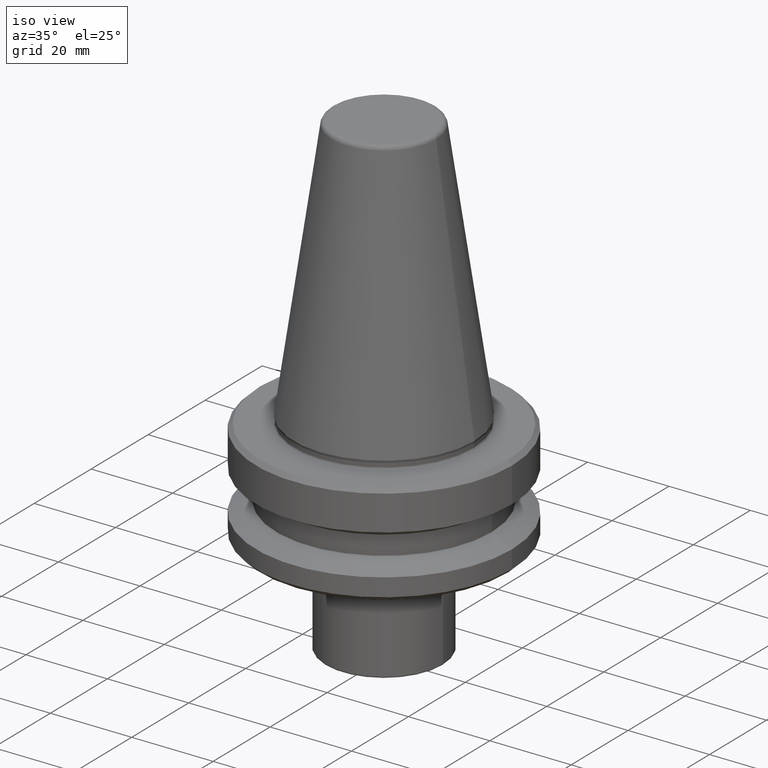
[diagram: clean part render]
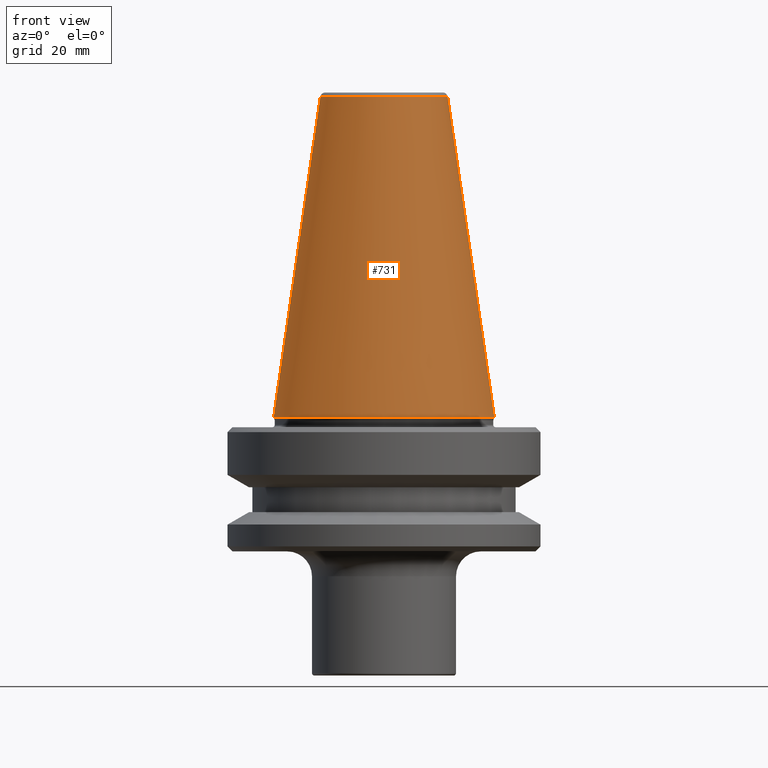
[diagram: tour spotlight — one face highlighted and labeled with its STEP entity id]
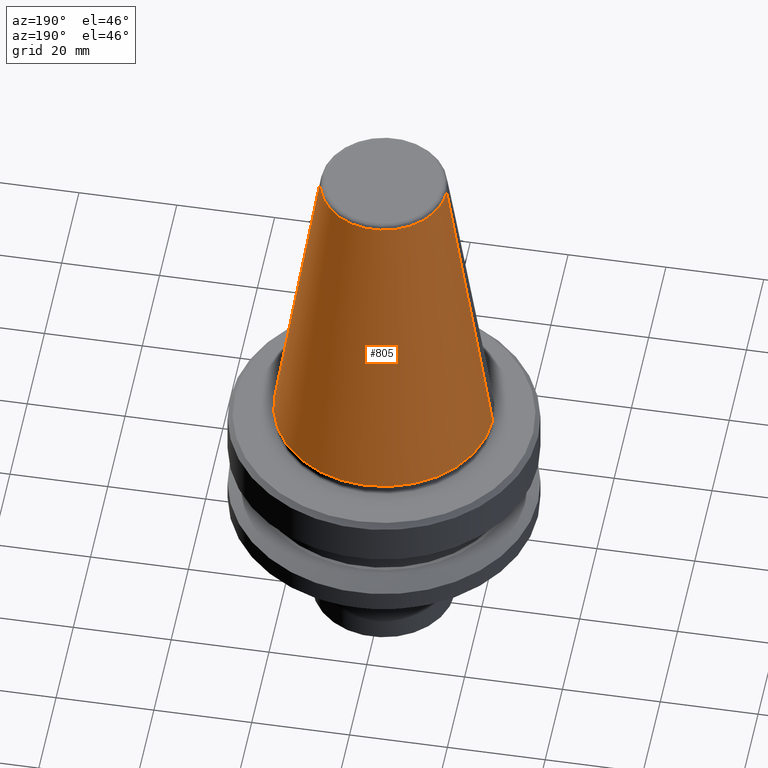
[diagram: tour spotlight — one face highlighted and labeled with its STEP entity id]
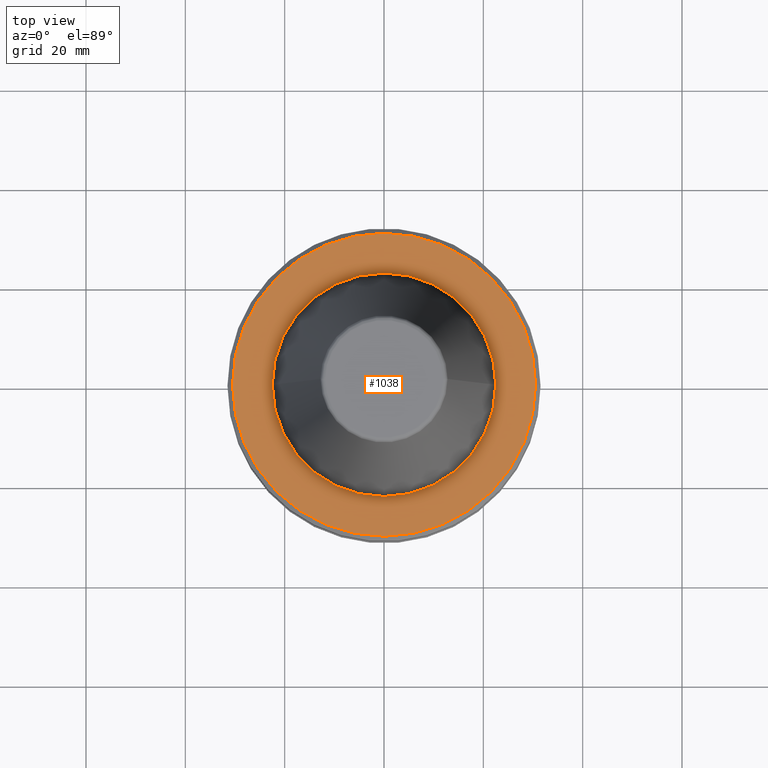
[diagram: tour spotlight — one face highlighted and labeled with its STEP entity id]
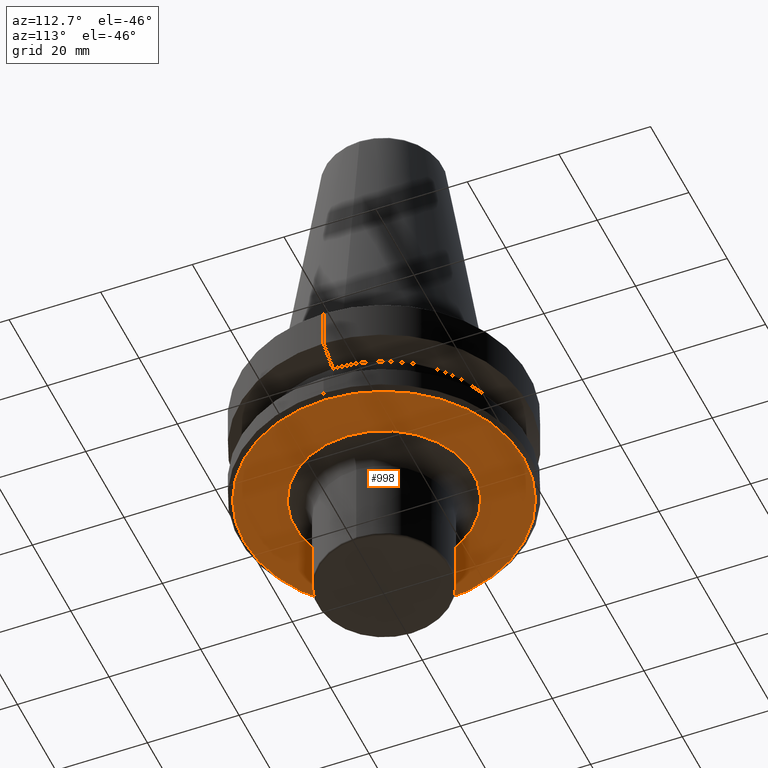
[diagram: tour spotlight — one face highlighted and labeled with its STEP entity id]
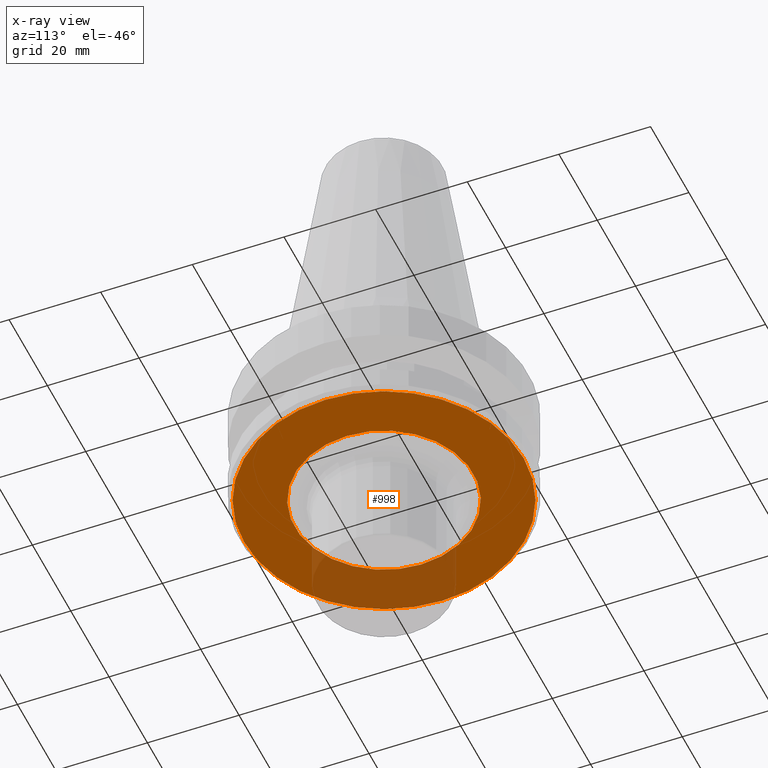
[diagram: x-ray of the same camera — body ghosted, this tour face saturated]
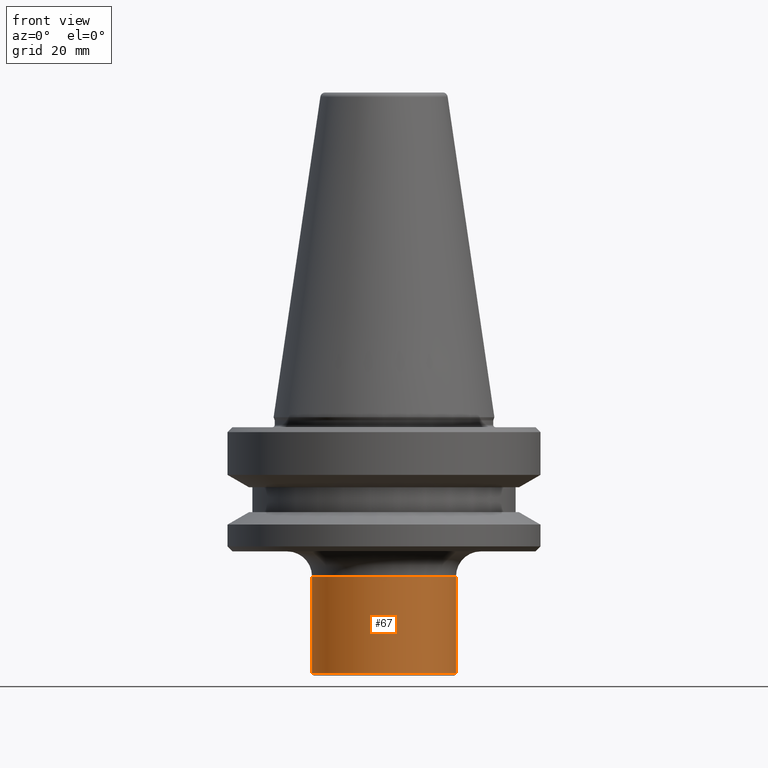
[diagram: tour spotlight — one face highlighted and labeled with its STEP entity id]
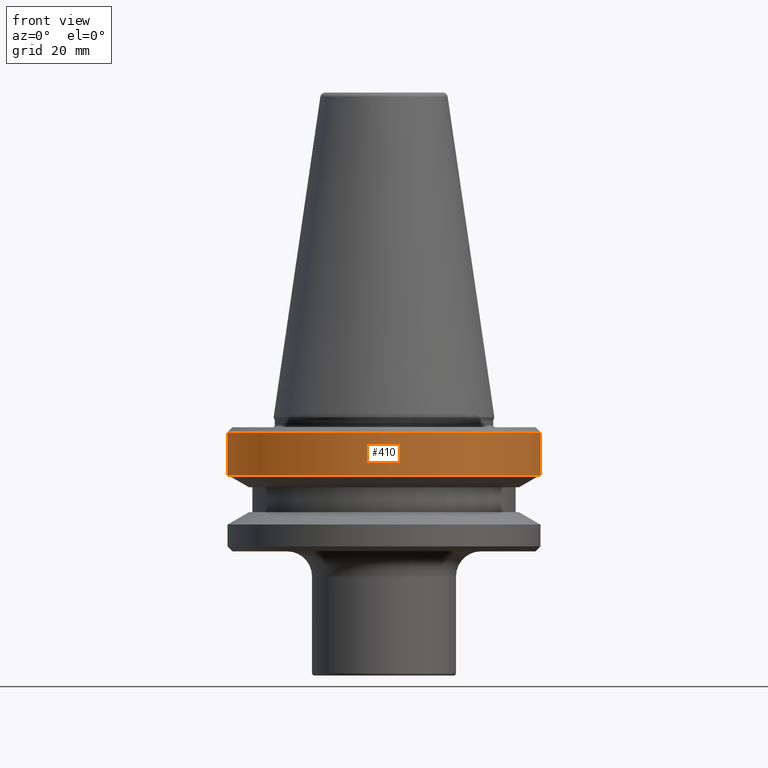
[diagram: tour spotlight — one face highlighted and labeled with its STEP entity id]
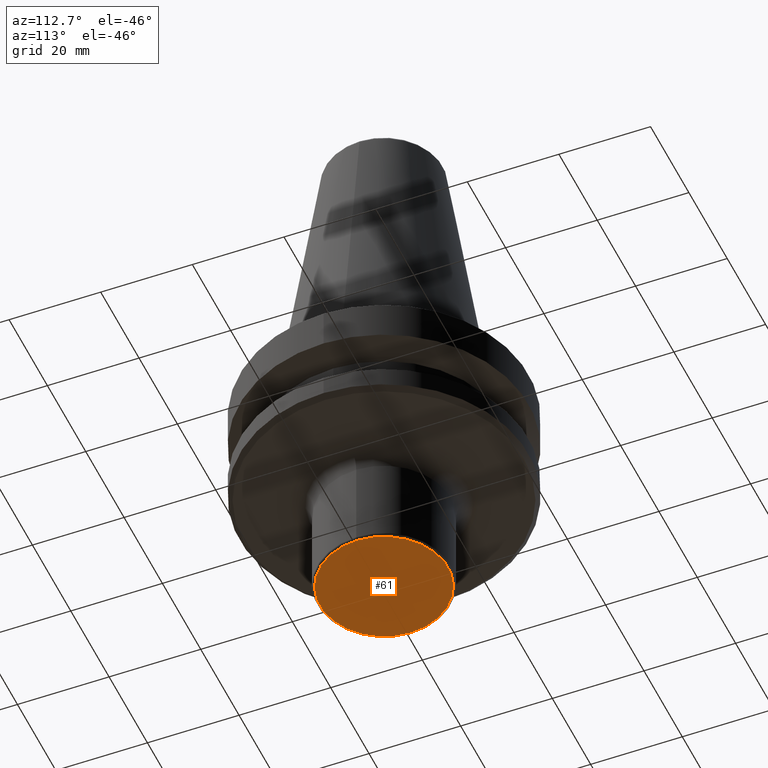
[diagram: tour spotlight — one face highlighted and labeled with its STEP entity id]
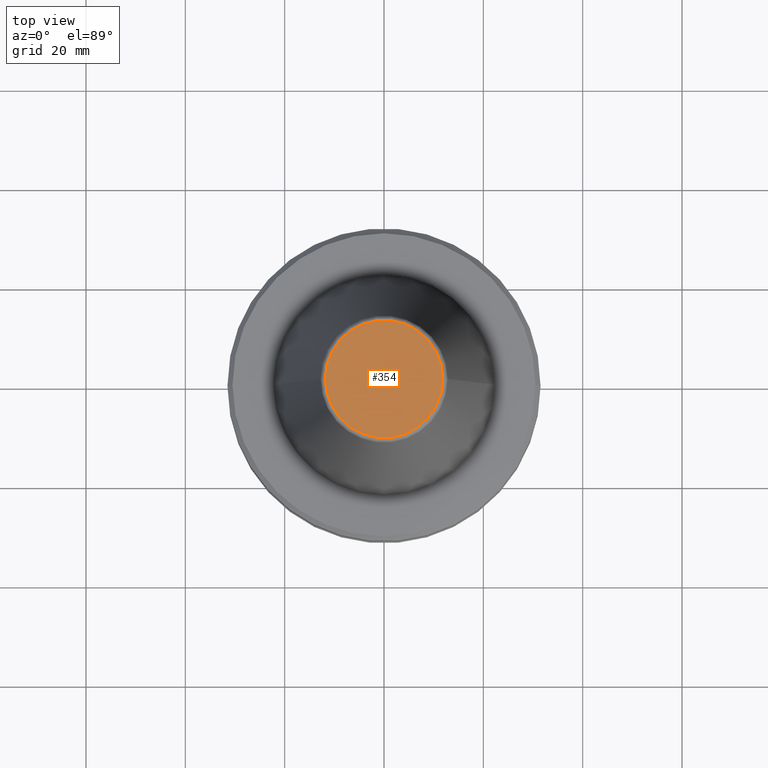
[diagram: tour spotlight — one face highlighted and labeled with its STEP entity id]
A machine part: a face-by-face anatomy tour. The part has 38 B-rep faces; the first image is the clean iso view, then the 8 largest visible faces are spotlighted one at a time (largest first), each with its STEP entity span.

Face 1 — front view, entity #731. In plain terms, the highlighted conical surface has half-angle 8.297 deg.
Definition (entity closure, byte-faithful):
#46 = ORIENTED_EDGE ( 'NONE', *, *, #614, .T. ) ;
#98 = CARTESIAN_POINT ( 'NONE',  ( 0.0000000000000000000, 0.0000000000000000000, -0.8556918111122247000 ) ) ;
#142 = DIRECTION ( 'NONE',  ( -1.000000000000000000, 0.0000000000000000000, 0.0000000000000000000 ) ) ;
#193 = ORIENTED_EDGE ( 'NONE', *, *, #1030, .F. ) ;
#214 = LINE ( 'NONE', #993, #243 ) ;
#240 = EDGE_CURVE ( 'NONE', #252, #974, #385, .T. ) ;
#243 = VECTOR ( 'NONE', #585, 1000.000000000000000 ) ;
#252 = VERTEX_POINT ( 'NONE', #333 ) ;
#260 = AXIS2_PLACEMENT_3D ( 'NONE', #542, #463, #142 ) ;
#333 = CARTESIAN_POINT ( 'NONE',  ( -12.81220206925736900, 0.0000000000000000000, -0.8556918111122247000 ) ) ;
#336 = LINE ( 'NONE', #765, #709 ) ;
#340 = CIRCLE ( 'NONE', #874, 22.22499999999993700 ) ;
#353 = CARTESIAN_POINT ( 'NONE',  ( -22.22499999999993700, 2.721777511104985000E-015, -65.40000000000057400 ) ) ;
#366 = EDGE_CURVE ( 'NONE', #252, #1012, #336, .T. ) ;
#372 = DIRECTION ( 'NONE',  ( -0.1443081888881795900, 0.0000000000000000000, -0.9895327920891826600 ) ) ;
#385 = CIRCLE ( 'NONE', #602, 12.81220206925736900 ) ;
#395 = EDGE_LOOP ( 'NONE', ( #193, #489, #886, #46 ) ) ;
#409 = CARTESIAN_POINT ( 'NONE',  ( 12.81220206925736900, 2.145409868259749100E-015, -0.8556918111122247000 ) ) ;
#426 = DIRECTION ( 'NONE',  ( 1.000000000000000000, 0.0000000000000000000, 0.0000000000000000000 ) ) ;
#463 = DIRECTION ( 'NONE',  ( 0.0000000000000000000, 0.0000000000000000000, -1.000000000000000000 ) ) ;
#489 = ORIENTED_EDGE ( 'NONE', *, *, #240, .F. ) ;
#523 = CARTESIAN_POINT ( 'NONE',  ( 22.22499999999993700, 0.0000000000000000000, -65.40000000000057400 ) ) ;
#542 = CARTESIAN_POINT ( 'NONE',  ( 0.0000000000000000000, 0.0000000000000000000, -0.8556918111122247000 ) ) ;
#561 = CARTESIAN_POINT ( 'NONE',  ( 0.0000000000000000000, 0.0000000000000000000, -65.40000000000057400 ) ) ;
#585 = DIRECTION ( 'NONE',  ( 0.1443081888881795900, 1.767265616126607700E-017, -0.9895327920891826600 ) ) ;
#602 = AXIS2_PLACEMENT_3D ( 'NONE', #98, #667, #426 ) ;
#614 = EDGE_CURVE ( 'NONE', #1012, #706, #340, .T. ) ;
#622 = DIRECTION ( 'NONE',  ( 1.000000000000000000, 0.0000000000000000000, 0.0000000000000000000 ) ) ;
#667 = DIRECTION ( 'NONE',  ( -0.0000000000000000000, -0.0000000000000000000, 1.000000000000000000 ) ) ;
#680 = CONICAL_SURFACE ( 'NONE', #260, 12.81220206925736900, 0.1448138077623198300 ) ;
#706 = VERTEX_POINT ( 'NONE', #523 ) ;
#709 = VECTOR ( 'NONE', #372, 1000.000000000000000 ) ;
#731 = ADVANCED_FACE ( 'NONE', ( #959 ), #680, .T. ) ;
#765 = CARTESIAN_POINT ( 'NONE',  ( -12.81220206925736900, 0.0000000000000000000, -0.8556918111122247000 ) ) ;
#874 = AXIS2_PLACEMENT_3D ( 'NONE', #561, #1024, #622 ) ;
#886 = ORIENTED_EDGE ( 'NONE', *, *, #366, .T. ) ;
#959 = FACE_OUTER_BOUND ( 'NONE', #395, .T. ) ;
#974 = VERTEX_POINT ( 'NONE', #409 ) ;
#993 = CARTESIAN_POINT ( 'NONE',  ( 12.81220206925736900, 1.569042225414513200E-015, -0.8556918111122247000 ) ) ;
#1012 = VERTEX_POINT ( 'NONE', #353 ) ;
#1024 = DIRECTION ( 'NONE',  ( -0.0000000000000000000, -0.0000000000000000000, 1.000000000000000000 ) ) ;
#1030 = EDGE_CURVE ( 'NONE', #974, #706, #214, .T. ) ;

Face 2 — auxiliary view, entity #805. In plain terms, the highlighted conical surface has half-angle 8.297 deg.
Definition (entity closure, byte-faithful):
#5 = DIRECTION ( 'NONE',  ( 0.0000000000000000000, 0.0000000000000000000, -1.000000000000000000 ) ) ;
#38 = DIRECTION ( 'NONE',  ( 1.000000000000000000, 0.0000000000000000000, 0.0000000000000000000 ) ) ;
#115 = AXIS2_PLACEMENT_3D ( 'NONE', #852, #970, #38 ) ;
#127 = ORIENTED_EDGE ( 'NONE', *, *, #474, .T. ) ;
#175 = CONICAL_SURFACE ( 'NONE', #639, 12.81220206925736900, 0.1448138077623198300 ) ;
#214 = LINE ( 'NONE', #993, #243 ) ;
#243 = VECTOR ( 'NONE', #585, 1000.000000000000000 ) ;
#244 = ORIENTED_EDGE ( 'NONE', *, *, #418, .F. ) ;
#252 = VERTEX_POINT ( 'NONE', #333 ) ;
#285 = ORIENTED_EDGE ( 'NONE', *, *, #366, .F. ) ;
#295 = EDGE_LOOP ( 'NONE', ( #244, #322, #127, #285 ) ) ;
#322 = ORIENTED_EDGE ( 'NONE', *, *, #1030, .T. ) ;
#333 = CARTESIAN_POINT ( 'NONE',  ( -12.81220206925736900, 0.0000000000000000000, -0.8556918111122247000 ) ) ;
#336 = LINE ( 'NONE', #765, #709 ) ;
#353 = CARTESIAN_POINT ( 'NONE',  ( -22.22499999999993700, 2.721777511104985000E-015, -65.40000000000057400 ) ) ;
#366 = EDGE_CURVE ( 'NONE', #252, #1012, #336, .T. ) ;
#372 = DIRECTION ( 'NONE',  ( -0.1443081888881795900, 0.0000000000000000000, -0.9895327920891826600 ) ) ;
#374 = DIRECTION ( 'NONE',  ( 1.000000000000000000, 0.0000000000000000000, 0.0000000000000000000 ) ) ;
#388 = AXIS2_PLACEMENT_3D ( 'NONE', #473, #835, #374 ) ;
#409 = CARTESIAN_POINT ( 'NONE',  ( 12.81220206925736900, 2.145409868259749100E-015, -0.8556918111122247000 ) ) ;
#413 = CIRCLE ( 'NONE', #388, 22.22499999999993700 ) ;
#418 = EDGE_CURVE ( 'NONE', #974, #252, #677, .T. ) ;
#473 = CARTESIAN_POINT ( 'NONE',  ( 0.0000000000000000000, 0.0000000000000000000, -65.40000000000057400 ) ) ;
#474 = EDGE_CURVE ( 'NONE', #706, #1012, #413, .T. ) ;
#508 = CARTESIAN_POINT ( 'NONE',  ( 0.0000000000000000000, 0.0000000000000000000, -0.8556918111122247000 ) ) ;
#523 = CARTESIAN_POINT ( 'NONE',  ( 22.22499999999993700, 0.0000000000000000000, -65.40000000000057400 ) ) ;
#585 = DIRECTION ( 'NONE',  ( 0.1443081888881795900, 1.767265616126607700E-017, -0.9895327920891826600 ) ) ;
#639 = AXIS2_PLACEMENT_3D ( 'NONE', #508, #5, #914 ) ;
#677 = CIRCLE ( 'NONE', #115, 12.81220206925736900 ) ;
#706 = VERTEX_POINT ( 'NONE', #523 ) ;
#709 = VECTOR ( 'NONE', #372, 1000.000000000000000 ) ;
#765 = CARTESIAN_POINT ( 'NONE',  ( -12.81220206925736900, 0.0000000000000000000, -0.8556918111122247000 ) ) ;
#805 = ADVANCED_FACE ( 'NONE', ( #1035 ), #175, .T. ) ;
#835 = DIRECTION ( 'NONE',  ( -0.0000000000000000000, -0.0000000000000000000, 1.000000000000000000 ) ) ;
#852 = CARTESIAN_POINT ( 'NONE',  ( 0.0000000000000000000, 0.0000000000000000000, -0.8556918111122247000 ) ) ;
#914 = DIRECTION ( 'NONE',  ( -1.000000000000000000, 0.0000000000000000000, 0.0000000000000000000 ) ) ;
#970 = DIRECTION ( 'NONE',  ( -0.0000000000000000000, -0.0000000000000000000, 1.000000000000000000 ) ) ;
#974 = VERTEX_POINT ( 'NONE', #409 ) ;
#993 = CARTESIAN_POINT ( 'NONE',  ( 12.81220206925736900, 1.569042225414513200E-015, -0.8556918111122247000 ) ) ;
#1012 = VERTEX_POINT ( 'NONE', #353 ) ;
#1030 = EDGE_CURVE ( 'NONE', #974, #706, #214, .T. ) ;
#1035 = FACE_OUTER_BOUND ( 'NONE', #295, .T. ) ;

Face 3 — top view, entity #1038. In plain terms, the highlighted planar face has unit normal (0, 0, -1).
Definition (entity closure, byte-faithful):
#45 = CARTESIAN_POINT ( 'NONE',  ( 0.0000000000000000000, 0.0000000000000000000, -67.40000000000034700 ) ) ;
#47 = ORIENTED_EDGE ( 'NONE', *, *, #789, .T. ) ;
#68 = EDGE_CURVE ( 'NONE', #167, #430, #498, .T. ) ;
#82 = DIRECTION ( 'NONE',  ( -0.0000000000000000000, -0.0000000000000000000, 1.000000000000000000 ) ) ;
#90 = AXIS2_PLACEMENT_3D ( 'NONE', #1016, #82, #540 ) ;
#106 = DIRECTION ( 'NONE',  ( 0.0000000000000000000, 0.0000000000000000000, -1.000000000000000000 ) ) ;
#113 = CARTESIAN_POINT ( 'NONE',  ( 30.49999999999997200, 3.796405077356798300E-015, -67.40000000000034700 ) ) ;
#156 = AXIS2_PLACEMENT_3D ( 'NONE', #563, #1048, #317 ) ;
#167 = VERTEX_POINT ( 'NONE', #966 ) ;
#191 = ORIENTED_EDGE ( 'NONE', *, *, #803, .T. ) ;
#245 = CARTESIAN_POINT ( 'NONE',  ( 0.0000000000000000000, 0.0000000000000000000, -67.40000000000034700 ) ) ;
#275 = DIRECTION ( 'NONE',  ( -1.000000000000000000, 0.0000000000000000000, -0.0000000000000000000 ) ) ;
#317 = DIRECTION ( 'NONE',  ( 1.000000000000000000, 0.0000000000000000000, 0.0000000000000000000 ) ) ;
#325 = EDGE_LOOP ( 'NONE', ( #191, #47 ) ) ;
#422 = AXIS2_PLACEMENT_3D ( 'NONE', #45, #691, #566 ) ;
#430 = VERTEX_POINT ( 'NONE', #435 ) ;
#435 = CARTESIAN_POINT ( 'NONE',  ( 22.49999999999996400, 0.0000000000000000000, -67.40000000000034700 ) ) ;
#440 = ORIENTED_EDGE ( 'NONE', *, *, #704, .F. ) ;
#498 = CIRCLE ( 'NONE', #156, 22.49999999999996400 ) ;
#506 = PLANE ( 'NONE',  #888 ) ;
#526 = AXIS2_PLACEMENT_3D ( 'NONE', #245, #818, #734 ) ;
#540 = DIRECTION ( 'NONE',  ( 1.000000000000000000, 0.0000000000000000000, 0.0000000000000000000 ) ) ;
#563 = CARTESIAN_POINT ( 'NONE',  ( 0.0000000000000000000, 0.0000000000000000000, -67.40000000000034700 ) ) ;
#566 = DIRECTION ( 'NONE',  ( 1.000000000000000000, 0.0000000000000000000, 0.0000000000000000000 ) ) ;
#569 = VERTEX_POINT ( 'NONE', #113 ) ;
#634 = CIRCLE ( 'NONE', #526, 30.49999999999997200 ) ;
#691 = DIRECTION ( 'NONE',  ( -0.0000000000000000000, -0.0000000000000000000, 1.000000000000000000 ) ) ;
#699 = ORIENTED_EDGE ( 'NONE', *, *, #68, .F. ) ;
#704 = EDGE_CURVE ( 'NONE', #430, #167, #710, .T. ) ;
#710 = CIRCLE ( 'NONE', #90, 22.49999999999996400 ) ;
#734 = DIRECTION ( 'NONE',  ( 1.000000000000000000, 0.0000000000000000000, 0.0000000000000000000 ) ) ;
#742 = VERTEX_POINT ( 'NONE', #1050 ) ;
#789 = EDGE_CURVE ( 'NONE', #569, #742, #871, .T. ) ;
#803 = EDGE_CURVE ( 'NONE', #742, #569, #634, .T. ) ;
#818 = DIRECTION ( 'NONE',  ( -0.0000000000000000000, -0.0000000000000000000, 1.000000000000000000 ) ) ;
#823 = FACE_OUTER_BOUND ( 'NONE', #325, .T. ) ;
#824 = CARTESIAN_POINT ( 'NONE',  ( 0.0000000000000000000, 0.0000000000000000000, -67.40000000000034700 ) ) ;
#871 = CIRCLE ( 'NONE', #422, 30.49999999999997200 ) ;
#888 = AXIS2_PLACEMENT_3D ( 'NONE', #824, #106, #275 ) ;
#929 = EDGE_LOOP ( 'NONE', ( #440, #699 ) ) ;
#966 = CARTESIAN_POINT ( 'NONE',  ( -22.49999999999996400, 2.755455298081540400E-015, -67.40000000000034700 ) ) ;
#1016 = CARTESIAN_POINT ( 'NONE',  ( 0.0000000000000000000, 0.0000000000000000000, -67.40000000000034700 ) ) ;
#1038 = ADVANCED_FACE ( 'NONE', ( #1041, #823 ), #506, .F. ) ;
#1041 = FACE_BOUND ( 'NONE', #929, .T. ) ;
#1048 = DIRECTION ( 'NONE',  ( -0.0000000000000000000, -0.0000000000000000000, 1.000000000000000000 ) ) ;
#1050 = CARTESIAN_POINT ( 'NONE',  ( -30.49999999999997200, 0.0000000000000000000, -67.40000000000034700 ) ) ;

Face 4 — auxiliary view, entity #998. An x-ray twin of the same camera follows (body ghosted, this face saturated) — the face is partly hidden behind the body. In plain terms, the highlighted planar face has unit normal (0, -0, 1).
Definition (entity closure, byte-faithful):
#9 = DIRECTION ( 'NONE',  ( -0.0000000000000000000, -0.0000000000000000000, 1.000000000000000000 ) ) ;
#40 = FACE_BOUND ( 'NONE', #982, .T. ) ;
#71 = VERTEX_POINT ( 'NONE', #798 ) ;
#104 = PLANE ( 'NONE',  #771 ) ;
#153 = DIRECTION ( 'NONE',  ( -0.0000000000000000000, -0.0000000000000000000, 1.000000000000000000 ) ) ;
#160 = EDGE_CURVE ( 'NONE', #541, #349, #869, .T. ) ;
#176 = EDGE_CURVE ( 'NONE', #71, #828, #548, .T. ) ;
#204 = CARTESIAN_POINT ( 'NONE',  ( 0.0000000000000000000, 0.0000000000000000000, -92.40000000000803500 ) ) ;
#228 = AXIS2_PLACEMENT_3D ( 'NONE', #491, #425, #279 ) ;
#250 = CIRCLE ( 'NONE', #283, 30.49999999999241900 ) ;
#273 = DIRECTION ( 'NONE',  ( 1.000000000000000000, 0.0000000000000000000, 0.0000000000000000000 ) ) ;
#279 = DIRECTION ( 'NONE',  ( 1.000000000000000000, 0.0000000000000000000, 0.0000000000000000000 ) ) ;
#283 = AXIS2_PLACEMENT_3D ( 'NONE', #204, #831, #1006 ) ;
#288 = CARTESIAN_POINT ( 'NONE',  ( 19.49999999999999600, 0.0000000000000000000, -92.40000000000803500 ) ) ;
#308 = ORIENTED_EDGE ( 'NONE', *, *, #421, .T. ) ;
#346 = DIRECTION ( 'NONE',  ( 1.000000000000000000, 0.0000000000000000000, 0.0000000000000000000 ) ) ;
#349 = VERTEX_POINT ( 'NONE', #571 ) ;
#421 = EDGE_CURVE ( 'NONE', #349, #541, #903, .T. ) ;
#425 = DIRECTION ( 'NONE',  ( -0.0000000000000000000, -0.0000000000000000000, 1.000000000000000000 ) ) ;
#447 = EDGE_CURVE ( 'NONE', #828, #71, #250, .T. ) ;
#471 = CARTESIAN_POINT ( 'NONE',  ( 30.49999999999241900, 0.0000000000000000000, -92.40000000000803500 ) ) ;
#491 = CARTESIAN_POINT ( 'NONE',  ( 0.0000000000000000000, 0.0000000000000000000, -92.40000000000803500 ) ) ;
#541 = VERTEX_POINT ( 'NONE', #288 ) ;
#548 = CIRCLE ( 'NONE', #754, 30.49999999999241900 ) ;
#571 = CARTESIAN_POINT ( 'NONE',  ( -19.49999999999999600, 2.388061258337338900E-015, -92.40000000000803500 ) ) ;
#582 = CARTESIAN_POINT ( 'NONE',  ( 0.0000000000000000000, 0.0000000000000000000, -92.40000000000803500 ) ) ;
#586 = ORIENTED_EDGE ( 'NONE', *, *, #176, .F. ) ;
#694 = ORIENTED_EDGE ( 'NONE', *, *, #160, .T. ) ;
#714 = DIRECTION ( 'NONE',  ( 1.000000000000000000, 0.0000000000000000000, 0.0000000000000000000 ) ) ;
#727 = ORIENTED_EDGE ( 'NONE', *, *, #447, .F. ) ;
#735 = CARTESIAN_POINT ( 'NONE',  ( 0.0000000000000000000, 0.0000000000000000000, -92.40000000000803500 ) ) ;
#744 = DIRECTION ( 'NONE',  ( 0.0000000000000000000, -0.0000000000000000000, 1.000000000000000000 ) ) ;
#754 = AXIS2_PLACEMENT_3D ( 'NONE', #892, #9, #346 ) ;
#771 = AXIS2_PLACEMENT_3D ( 'NONE', #582, #744, #273 ) ;
#798 = CARTESIAN_POINT ( 'NONE',  ( -30.49999999999241900, 3.796405077356336000E-015, -92.40000000000803500 ) ) ;
#828 = VERTEX_POINT ( 'NONE', #471 ) ;
#831 = DIRECTION ( 'NONE',  ( -0.0000000000000000000, -0.0000000000000000000, 1.000000000000000000 ) ) ;
#869 = CIRCLE ( 'NONE', #962, 19.49999999999999600 ) ;
#892 = CARTESIAN_POINT ( 'NONE',  ( 0.0000000000000000000, 0.0000000000000000000, -92.40000000000803500 ) ) ;
#903 = CIRCLE ( 'NONE', #228, 19.49999999999999600 ) ;
#909 = FACE_OUTER_BOUND ( 'NONE', #912, .T. ) ;
#912 = EDGE_LOOP ( 'NONE', ( #727, #586 ) ) ;
#962 = AXIS2_PLACEMENT_3D ( 'NONE', #735, #153, #714 ) ;
#982 = EDGE_LOOP ( 'NONE', ( #694, #308 ) ) ;
#998 = ADVANCED_FACE ( 'NONE', ( #909, #40 ), #104, .F. ) ;
#1006 = DIRECTION ( 'NONE',  ( 1.000000000000000000, 0.0000000000000000000, 0.0000000000000000000 ) ) ;

Face 5 — front view, entity #67. In plain terms, the highlighted cylindrical surface (partial cylindrical patch) has radius 14.5 mm, axis along (-0, -0, 1).
Definition (entity closure, byte-faithful):
#1 = AXIS2_PLACEMENT_3D ( 'NONE', #532, #875, #857 ) ;
#4 = DIRECTION ( 'NONE',  ( 1.000000000000000000, 0.0000000000000000000, 0.0000000000000000000 ) ) ;
#8 = DIRECTION ( 'NONE',  ( -0.0000000000000000000, -0.0000000000000000000, 1.000000000000000000 ) ) ;
#67 = ADVANCED_FACE ( 'NONE', ( #307 ), #477, .T. ) ;
#144 = CIRCLE ( 'NONE', #509, 14.50000000000000200 ) ;
#203 = ORIENTED_EDGE ( 'NONE', *, *, #833, .T. ) ;
#272 = CARTESIAN_POINT ( 'NONE',  ( 14.50000000000000000, 0.0000000000000000000, -116.9000000000083300 ) ) ;
#274 = EDGE_CURVE ( 'NONE', #455, #564, #144, .T. ) ;
#297 = CARTESIAN_POINT ( 'NONE',  ( -14.50000000000000200, 1.775737858763662400E-015, 6.357346922996331500 ) ) ;
#298 = VERTEX_POINT ( 'NONE', #485 ) ;
#307 = FACE_OUTER_BOUND ( 'NONE', #911, .T. ) ;
#310 = CARTESIAN_POINT ( 'NONE',  ( -14.50000000000000000, 1.775737858763662000E-015, -116.9000000000083300 ) ) ;
#315 = EDGE_CURVE ( 'NONE', #298, #768, #546, .T. ) ;
#345 = CARTESIAN_POINT ( 'NONE',  ( 14.50000000000000200, 0.0000000000000000000, 6.357346922996331500 ) ) ;
#364 = ORIENTED_EDGE ( 'NONE', *, *, #315, .F. ) ;
#414 = CARTESIAN_POINT ( 'NONE',  ( 14.50000000000000200, 0.0000000000000000000, -97.40000000000803500 ) ) ;
#455 = VERTEX_POINT ( 'NONE', #310 ) ;
#468 = DIRECTION ( 'NONE',  ( 1.000000000000000000, 0.0000000000000000000, 0.0000000000000000000 ) ) ;
#477 = CYLINDRICAL_SURFACE ( 'NONE', #1, 14.50000000000000200 ) ;
#485 = CARTESIAN_POINT ( 'NONE',  ( -14.50000000000000200, 2.081899558550500300E-015, -97.40000000000803500 ) ) ;
#497 = VECTOR ( 'NONE', #814, 1000.000000000000000 ) ;
#509 = AXIS2_PLACEMENT_3D ( 'NONE', #592, #525, #468 ) ;
#525 = DIRECTION ( 'NONE',  ( -0.0000000000000000000, -0.0000000000000000000, 1.000000000000000000 ) ) ;
#527 = LINE ( 'NONE', #297, #497 ) ;
#532 = CARTESIAN_POINT ( 'NONE',  ( 0.0000000000000000000, 0.0000000000000000000, 6.357346922996331500 ) ) ;
#546 = CIRCLE ( 'NONE', #724, 14.50000000000000200 ) ;
#557 = ORIENTED_EDGE ( 'NONE', *, *, #274, .T. ) ;
#564 = VERTEX_POINT ( 'NONE', #272 ) ;
#570 = DIRECTION ( 'NONE',  ( -0.0000000000000000000, -0.0000000000000000000, 1.000000000000000000 ) ) ;
#575 = VECTOR ( 'NONE', #8, 1000.000000000000000 ) ;
#592 = CARTESIAN_POINT ( 'NONE',  ( 0.0000000000000000000, 0.0000000000000000000, -116.9000000000083300 ) ) ;
#724 = AXIS2_PLACEMENT_3D ( 'NONE', #972, #570, #4 ) ;
#768 = VERTEX_POINT ( 'NONE', #414 ) ;
#788 = LINE ( 'NONE', #345, #575 ) ;
#794 = ORIENTED_EDGE ( 'NONE', *, *, #901, .F. ) ;
#814 = DIRECTION ( 'NONE',  ( -0.0000000000000000000, -0.0000000000000000000, 1.000000000000000000 ) ) ;
#833 = EDGE_CURVE ( 'NONE', #564, #768, #788, .T. ) ;
#857 = DIRECTION ( 'NONE',  ( 1.000000000000000000, 0.0000000000000000000, 0.0000000000000000000 ) ) ;
#875 = DIRECTION ( 'NONE',  ( -0.0000000000000000000, -0.0000000000000000000, 1.000000000000000000 ) ) ;
#901 = EDGE_CURVE ( 'NONE', #455, #298, #527, .T. ) ;
#911 = EDGE_LOOP ( 'NONE', ( #794, #557, #203, #364 ) ) ;
#972 = CARTESIAN_POINT ( 'NONE',  ( 0.0000000000000000000, 0.0000000000000000000, -97.40000000000803500 ) ) ;

Face 6 — front view, entity #410. In plain terms, the highlighted cylindrical surface (partial cylindrical patch) has radius 31.5 mm, axis along (-0, -0, 1).
Definition (entity closure, byte-faithful):
#33 = CARTESIAN_POINT ( 'NONE',  ( 31.50000000000008500, 0.0000000000000000000, -68.40000000000046000 ) ) ;
#43 = DIRECTION ( 'NONE',  ( -0.0000000000000000000, -0.0000000000000000000, 1.000000000000000000 ) ) ;
#51 = FACE_OUTER_BOUND ( 'NONE', #478, .T. ) ;
#62 = VECTOR ( 'NONE', #141, 1000.000000000000000 ) ;
#92 = AXIS2_PLACEMENT_3D ( 'NONE', #640, #379, #775 ) ;
#96 = EDGE_CURVE ( 'NONE', #873, #1011, #331, .T. ) ;
#141 = DIRECTION ( 'NONE',  ( -0.0000000000000000000, -0.0000000000000000000, 1.000000000000000000 ) ) ;
#154 = EDGE_CURVE ( 'NONE', #1011, #404, #519, .T. ) ;
#170 = DIRECTION ( 'NONE',  ( -0.0000000000000000000, -0.0000000000000000000, 1.000000000000000000 ) ) ;
#171 = AXIS2_PLACEMENT_3D ( 'NONE', #762, #43, #210 ) ;
#210 = DIRECTION ( 'NONE',  ( 1.000000000000000000, 0.0000000000000000000, 0.0000000000000000000 ) ) ;
#232 = VECTOR ( 'NONE', #170, 1000.000000000000000 ) ;
#242 = CARTESIAN_POINT ( 'NONE',  ( 0.0000000000000000000, 0.0000000000000000000, -68.40000000000046000 ) ) ;
#248 = CARTESIAN_POINT ( 'NONE',  ( 31.50000000000008500, 0.0000000000000000000, 6.357346922996331500 ) ) ;
#255 = ORIENTED_EDGE ( 'NONE', *, *, #154, .T. ) ;
#331 = CIRCLE ( 'NONE', #92, 31.50000000000008500 ) ;
#379 = DIRECTION ( 'NONE',  ( -0.0000000000000000000, -0.0000000000000000000, 1.000000000000000000 ) ) ;
#404 = VERTEX_POINT ( 'NONE', #33 ) ;
#407 = CARTESIAN_POINT ( 'NONE',  ( -31.50000000000008500, 3.857637417314172900E-015, 6.357346922996331500 ) ) ;
#410 = ADVANCED_FACE ( 'NONE', ( #51 ), #461, .T. ) ;
#442 = LINE ( 'NONE', #407, #232 ) ;
#461 = CYLINDRICAL_SURFACE ( 'NONE', #171, 31.50000000000008500 ) ;
#478 = EDGE_LOOP ( 'NONE', ( #673, #779, #255, #1051 ) ) ;
#519 = LINE ( 'NONE', #248, #62 ) ;
#580 = DIRECTION ( 'NONE',  ( -0.0000000000000000000, -0.0000000000000000000, 1.000000000000000000 ) ) ;
#640 = CARTESIAN_POINT ( 'NONE',  ( 0.0000000000000000000, 0.0000000000000000000, -76.99985799368391800 ) ) ;
#673 = ORIENTED_EDGE ( 'NONE', *, *, #786, .F. ) ;
#688 = AXIS2_PLACEMENT_3D ( 'NONE', #242, #580, #879 ) ;
#743 = CARTESIAN_POINT ( 'NONE',  ( -31.50000000000008500, 3.857637417314172900E-015, -76.99985799368391800 ) ) ;
#762 = CARTESIAN_POINT ( 'NONE',  ( 0.0000000000000000000, 0.0000000000000000000, 6.357346922996331500 ) ) ;
#775 = DIRECTION ( 'NONE',  ( 1.000000000000000000, 0.0000000000000000000, 0.0000000000000000000 ) ) ;
#779 = ORIENTED_EDGE ( 'NONE', *, *, #96, .T. ) ;
#786 = EDGE_CURVE ( 'NONE', #873, #1021, #442, .T. ) ;
#812 = CIRCLE ( 'NONE', #688, 31.50000000000008500 ) ;
#820 = EDGE_CURVE ( 'NONE', #1021, #404, #812, .T. ) ;
#873 = VERTEX_POINT ( 'NONE', #743 ) ;
#879 = DIRECTION ( 'NONE',  ( 1.000000000000000000, 0.0000000000000000000, 0.0000000000000000000 ) ) ;
#913 = CARTESIAN_POINT ( 'NONE',  ( -31.50000000000008500, 3.857637417314172900E-015, -68.40000000000046000 ) ) ;
#973 = CARTESIAN_POINT ( 'NONE',  ( 31.50000000000008500, 0.0000000000000000000, -76.99985799368391800 ) ) ;
#1011 = VERTEX_POINT ( 'NONE', #973 ) ;
#1021 = VERTEX_POINT ( 'NONE', #913 ) ;
#1051 = ORIENTED_EDGE ( 'NONE', *, *, #820, .F. ) ;

Face 7 — auxiliary view, entity #61. In plain terms, the highlighted planar face has unit normal (0, 0, -1).
Definition (entity closure, byte-faithful):
#35 = AXIS2_PLACEMENT_3D ( 'NONE', #953, #384, #961 ) ;
#61 = ADVANCED_FACE ( 'NONE', ( #748 ), #631, .T. ) ;
#101 = EDGE_CURVE ( 'NONE', #881, #954, #111, .T. ) ;
#111 = CIRCLE ( 'NONE', #1002, 14.00000000000030000 ) ;
#268 = ORIENTED_EDGE ( 'NONE', *, *, #101, .F. ) ;
#299 = ORIENTED_EDGE ( 'NONE', *, *, #684, .F. ) ;
#300 = CARTESIAN_POINT ( 'NONE',  ( 0.0000000000000000000, 0.0000000000000000000, -117.4000000000080200 ) ) ;
#332 = DIRECTION ( 'NONE',  ( -0.0000000000000000000, -0.0000000000000000000, 1.000000000000000000 ) ) ;
#384 = DIRECTION ( 'NONE',  ( -0.0000000000000000000, -0.0000000000000000000, 1.000000000000000000 ) ) ;
#393 = DIRECTION ( 'NONE',  ( -1.000000000000000000, 0.0000000000000000000, -0.0000000000000000000 ) ) ;
#424 = CARTESIAN_POINT ( 'NONE',  ( -14.00000000000030000, 1.745121688784996800E-015, -117.4000000000080200 ) ) ;
#465 = DIRECTION ( 'NONE',  ( 0.0000000000000000000, 0.0000000000000000000, -1.000000000000000000 ) ) ;
#528 = EDGE_LOOP ( 'NONE', ( #268, #299 ) ) ;
#608 = AXIS2_PLACEMENT_3D ( 'NONE', #300, #465, #393 ) ;
#631 = PLANE ( 'NONE',  #608 ) ;
#637 = CARTESIAN_POINT ( 'NONE',  ( 14.00000000000030000, 0.0000000000000000000, -117.4000000000080200 ) ) ;
#684 = EDGE_CURVE ( 'NONE', #954, #881, #905, .T. ) ;
#748 = FACE_OUTER_BOUND ( 'NONE', #528, .T. ) ;
#807 = DIRECTION ( 'NONE',  ( 1.000000000000000000, 0.0000000000000000000, 0.0000000000000000000 ) ) ;
#881 = VERTEX_POINT ( 'NONE', #637 ) ;
#895 = CARTESIAN_POINT ( 'NONE',  ( 0.0000000000000000000, 0.0000000000000000000, -117.4000000000080200 ) ) ;
#905 = CIRCLE ( 'NONE', #35, 14.00000000000030000 ) ;
#953 = CARTESIAN_POINT ( 'NONE',  ( 0.0000000000000000000, 0.0000000000000000000, -117.4000000000080200 ) ) ;
#954 = VERTEX_POINT ( 'NONE', #424 ) ;
#961 = DIRECTION ( 'NONE',  ( 1.000000000000000000, 0.0000000000000000000, 0.0000000000000000000 ) ) ;
#1002 = AXIS2_PLACEMENT_3D ( 'NONE', #895, #332, #807 ) ;

Face 8 — top view, entity #354. In plain terms, the highlighted planar face has unit normal (0, 0, -1).
Definition (entity closure, byte-faithful):
#89 = FACE_OUTER_BOUND ( 'NONE', #370, .T. ) ;
#135 = DIRECTION ( 'NONE',  ( -0.0000000000000000000, -0.0000000000000000000, 1.000000000000000000 ) ) ;
#165 = PLANE ( 'NONE',  #952 ) ;
#168 = VERTEX_POINT ( 'NONE', #469 ) ;
#178 = EDGE_CURVE ( 'NONE', #657, #168, #652, .T. ) ;
#335 = DIRECTION ( 'NONE',  ( -0.0000000000000000000, -0.0000000000000000000, 1.000000000000000000 ) ) ;
#344 = CARTESIAN_POINT ( 'NONE',  ( 0.0000000000000000000, 0.0000000000000000000, -4.440892098500626200E-013 ) ) ;
#354 = ADVANCED_FACE ( 'NONE', ( #89 ), #165, .F. ) ;
#370 = EDGE_LOOP ( 'NONE', ( #739, #986 ) ) ;
#469 = CARTESIAN_POINT ( 'NONE',  ( 11.82266927716813000, 0.0000000000000000000, -4.440892098500626200E-013 ) ) ;
#587 = CARTESIAN_POINT ( 'NONE',  ( -11.82266927716813000, 1.508450817090336800E-015, -4.440892098500626200E-013 ) ) ;
#610 = DIRECTION ( 'NONE',  ( 0.0000000000000000000, 0.0000000000000000000, -1.000000000000000000 ) ) ;
#617 = CIRCLE ( 'NONE', #826, 11.82266927716813000 ) ;
#624 = CARTESIAN_POINT ( 'NONE',  ( 0.0000000000000000000, 0.0000000000000000000, -4.440892098500626200E-013 ) ) ;
#652 = CIRCLE ( 'NONE', #686, 11.82266927716813000 ) ;
#657 = VERTEX_POINT ( 'NONE', #587 ) ;
#686 = AXIS2_PLACEMENT_3D ( 'NONE', #773, #335, #969 ) ;
#702 = DIRECTION ( 'NONE',  ( 1.000000000000000000, 0.0000000000000000000, 0.0000000000000000000 ) ) ;
#739 = ORIENTED_EDGE ( 'NONE', *, *, #1039, .T. ) ;
#773 = CARTESIAN_POINT ( 'NONE',  ( 0.0000000000000000000, 0.0000000000000000000, -4.440892098500626200E-013 ) ) ;
#826 = AXIS2_PLACEMENT_3D ( 'NONE', #624, #135, #702 ) ;
#916 = DIRECTION ( 'NONE',  ( -1.000000000000000000, 0.0000000000000000000, -0.0000000000000000000 ) ) ;
#952 = AXIS2_PLACEMENT_3D ( 'NONE', #344, #610, #916 ) ;
#969 = DIRECTION ( 'NONE',  ( 1.000000000000000000, 0.0000000000000000000, 0.0000000000000000000 ) ) ;
#986 = ORIENTED_EDGE ( 'NONE', *, *, #178, .T. ) ;
#1039 = EDGE_CURVE ( 'NONE', #168, #657, #617, .T. ) ;